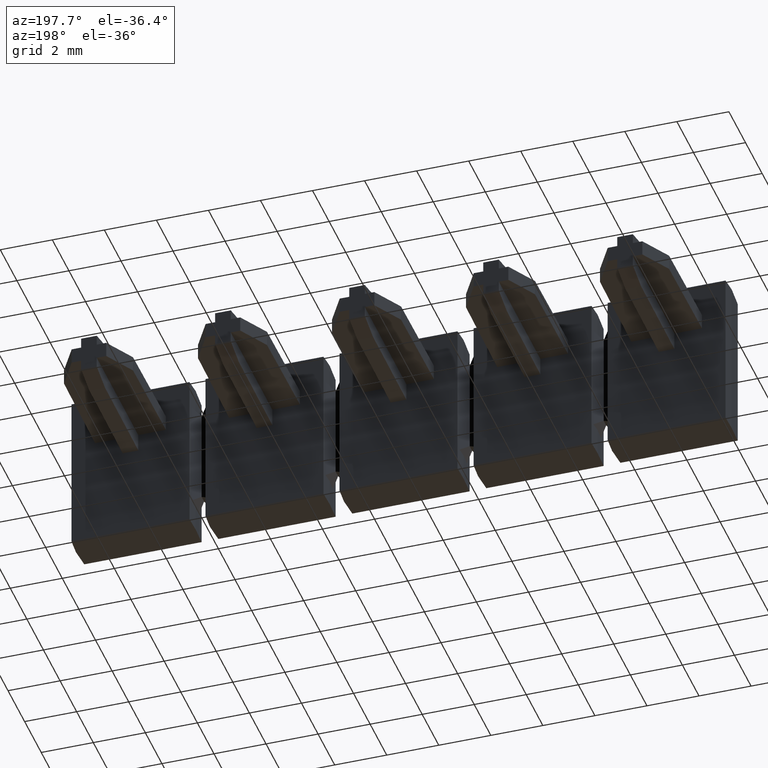
[diagram: clean part render]
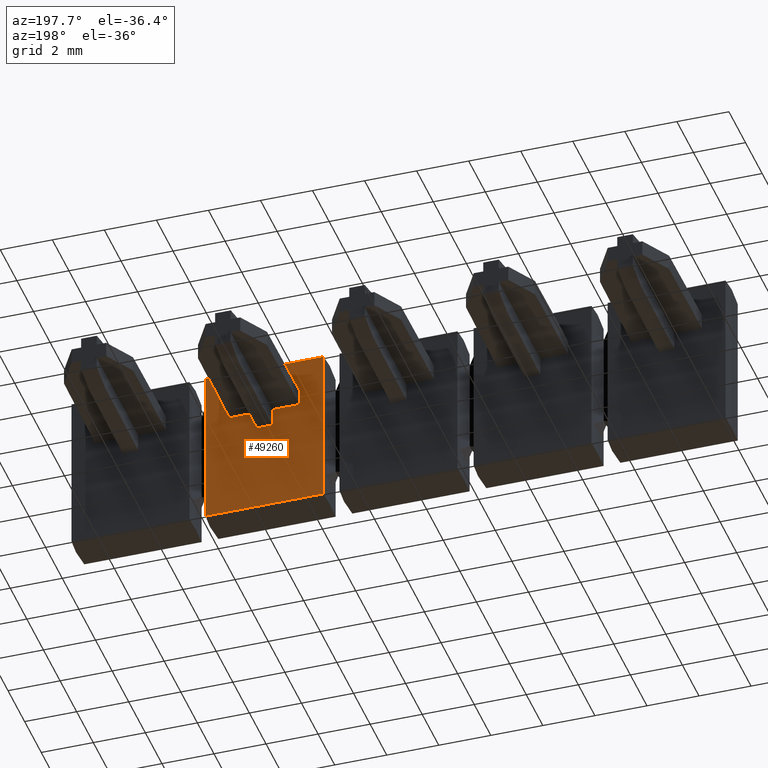
[diagram: same view with one face highlighted and labeled with its STEP entity id]
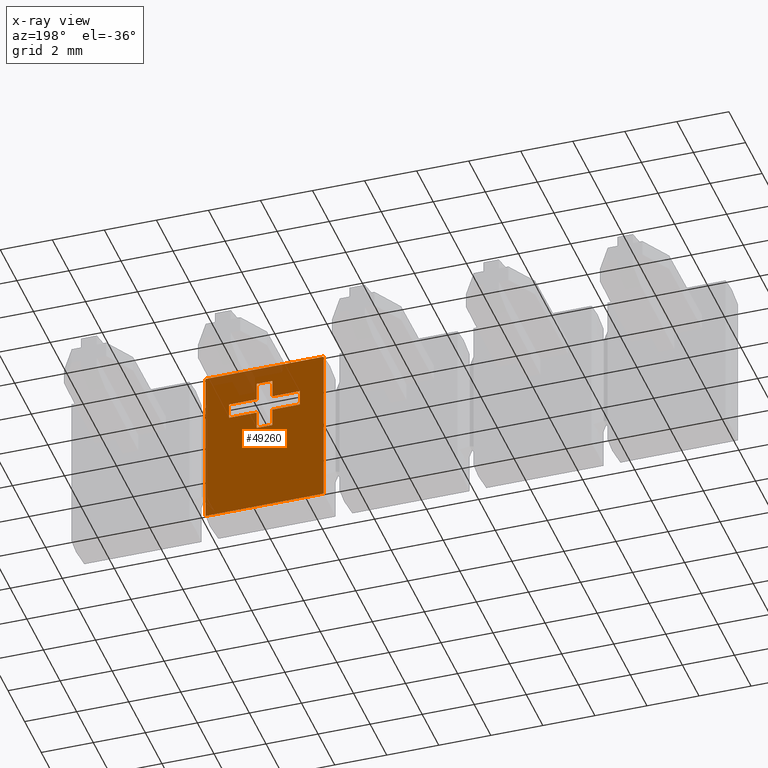
[diagram: x-ray of the same camera — body ghosted, the highlighted face saturated]
A machine part, auxiliary view. The second image highlights one B-rep face of the part: STEP entity #49260.
The next image is the same camera in x-ray: the body ghosted, the highlighted face saturated — about 6% of this face is hidden behind the body in this view.
In plain terms, the highlighted planar face has unit normal (-0, 1, -0).
Its self-contained STEP definition (entity closure, byte-faithful):
#1000=CARTESIAN_POINT('',(18.417735866572,2.26950785553619,
53.6700000000669));
#1010=DIRECTION('',(2.66975915508205E-12,-4.08396006638927E-13,-1.));
#1020=VECTOR('',#1010,1.);
#1030=LINE('',#1000,#1020);
#1040=CARTESIAN_POINT('',(18.4177358666165,2.26950785552938,
37.0050000000215));
#1050=VERTEX_POINT('',#1040);
#1060=CARTESIAN_POINT('',(18.4177358666193,2.26950785552895,
35.9449999999923));
#1070=VERTEX_POINT('',#1060);
#1080=EDGE_CURVE('',#1050,#1070,#1030,.T.);
#9550=CARTESIAN_POINT('',(19.1177358665688,2.26950785552869,
35.3449999999942));
#9560=VERTEX_POINT('',#9550);
#9590=CARTESIAN_POINT('',(25.1869785548975,2.26950785552866,
35.3450000000104));
#9600=DIRECTION('',(-1.,6.29799242864736E-15,-2.6697591550794E-12));
#9610=VECTOR('',#9600,1.);
#9620=LINE('',#9590,#9610);
#9630=CARTESIAN_POINT('',(18.4177358666209,2.2695078555287,
35.3449999999923));
#9640=VERTEX_POINT('',#9630);
#9650=EDGE_CURVE('',#9560,#9640,#9620,.T.);
#13740=CARTESIAN_POINT('',(17.1177358666648,2.26950785552895,
35.9449999999889));
#13750=VERTEX_POINT('',#13740);
#13780=CARTESIAN_POINT('',(25.1869785548959,2.2695078555289,
35.9450000000104));
#13790=DIRECTION('',(1.,-6.29799242864736E-15,2.6697591550794E-12));
#13800=VECTOR('',#13790,1.);
#13810=LINE('',#13780,#13800);
#13820=CARTESIAN_POINT('',(17.8177358666161,2.26950785552895,
35.9449999999907));
#13830=VERTEX_POINT('',#13820);
#13840=EDGE_CURVE('',#13750,#13830,#13810,.T.);
#24130=CARTESIAN_POINT('',(18.417735866572,2.26950785553619,
53.6700000000669));
#24140=DIRECTION('',(2.66975915508205E-12,-4.08396006638927E-13,-1.));
#24150=VECTOR('',#24140,1.);
#24160=LINE('',#24130,#24150);
#24170=CARTESIAN_POINT('',(18.4177358666237,2.26950785552827,
34.2849999999636));
#24180=VERTEX_POINT('',#24170);
#24190=EDGE_CURVE('',#9640,#24180,#24160,.T.);
#25540=CARTESIAN_POINT('',(17.8177358666209,2.2695078555287,
35.3449999999907));
#25550=VERTEX_POINT('',#25540);
#25580=CARTESIAN_POINT('',(25.1869785548975,2.26950785552866,
35.3450000000104));
#25590=DIRECTION('',(-1.,6.29799242864736E-15,-2.6697591550794E-12));
#25600=VECTOR('',#25590,1.);
#25610=LINE('',#25580,#25600);
#25620=CARTESIAN_POINT('',(17.1177358666664,2.2695078555287,
35.3449999999889));
#25630=VERTEX_POINT('',#25620);
#25640=EDGE_CURVE('',#25550,#25630,#25610,.T.);
#28350=CARTESIAN_POINT('',(17.1177358666176,2.26950785553619,
53.6700000000635));
#28360=DIRECTION('',(-2.66475151841568E-12,4.08396006638926E-13,1.));
#28370=VECTOR('',#28360,1.);
#28380=LINE('',#28350,#28370);
#28390=EDGE_CURVE('',#25630,#13750,#28380,.T.);
#33850=CARTESIAN_POINT('',(17.8177358666132,2.26950785552938,
37.0050000000199));
#33860=VERTEX_POINT('',#33850);
#33890=CARTESIAN_POINT('',(25.1869785548931,2.26950785552934,
37.0050000000392));
#33900=DIRECTION('',(1.,-6.29799242866992E-15,2.61451256510272E-12));
#33910=VECTOR('',#33900,1.);
#33920=LINE('',#33890,#33910);
#33930=EDGE_CURVE('',#33860,#1050,#33920,.T.);
#36530=CARTESIAN_POINT('',(25.1869785548959,2.2695078555289,
35.9450000000104));
#36540=DIRECTION('',(1.,-6.29799242864736E-15,2.6697591550794E-12));
#36550=VECTOR('',#36540,1.);
#36560=LINE('',#36530,#36550);
#36570=CARTESIAN_POINT('',(19.1177358665672,2.26950785552894,
35.9449999999942));
#36580=VERTEX_POINT('',#36570);
#36590=EDGE_CURVE('',#1070,#36580,#36560,.T.);
#39370=CARTESIAN_POINT('',(19.1177358665198,2.26950785553618,
53.6700000000688));
#39380=DIRECTION('',(2.67476679174313E-12,-4.08396006638927E-13,-1.));
#39390=VECTOR('',#39380,1.);
#39400=LINE('',#39370,#39390);
#39410=EDGE_CURVE('',#36580,#9560,#39400,.T.);
#43700=CARTESIAN_POINT('',(16.45111071855,2.26950785552976,
37.9116252093693));
#43710=VERTEX_POINT('',#43700);
#43740=CARTESIAN_POINT('',(16.4511107185833,2.2695078555362,
53.6700000000617));
#43750=DIRECTION('',(-2.1134619990612E-12,-4.08396006638896E-13,-1.));
#43760=VECTOR('',#43750,1.);
#43770=LINE('',#43740,#43760);
#43780=CARTESIAN_POINT('',(16.4511107185404,2.26950785552791,
33.3783747906678));
#43790=VERTEX_POINT('',#43780);
#43800=EDGE_CURVE('',#43710,#43790,#43770,.T.);
#46620=CARTESIAN_POINT('',(17.8177358665687,2.26950785553619,
53.6700000000654));
#46630=DIRECTION('',(-2.66975915508205E-12,4.08396006638927E-13,1.));
#46640=VECTOR('',#46630,1.);
#46650=LINE('',#46620,#46640);
#46660=EDGE_CURVE('',#13830,#33860,#46650,.T.);
#48700=CARTESIAN_POINT('',(18.6177358869368,2.26950785553198,
43.3700000205404));
#48710=DIRECTION('',(-6.29799242973768E-15,-1.,4.0839600663891E-13));
#48720=DIRECTION('',(-1.,6.29799243060089E-15,2.11364818889553E-12));
#48730=AXIS2_PLACEMENT_3D('',#48700,#48710,#48720);
#48740=PLANE('',#48730);
#48750=ORIENTED_EDGE('',*,*,#13840,.T.);
#48760=ORIENTED_EDGE('',*,*,#28390,.T.);
#48770=ORIENTED_EDGE('',*,*,#25640,.T.);
#48780=CARTESIAN_POINT('',(17.817735866572,2.26950785553619,
53.6700000000654));
#48790=DIRECTION('',(-2.66975915508205E-12,4.08396006638927E-13,1.));
#48800=VECTOR('',#48790,1.);
#48810=LINE('',#48780,#48800);
#48820=CARTESIAN_POINT('',(17.8177358666238,2.26950785552828,
34.284999999962));
#48830=VERTEX_POINT('',#48820);
#48840=EDGE_CURVE('',#48830,#25550,#48810,.T.);
#48850=ORIENTED_EDGE('',*,*,#48840,.T.);
#48860=CARTESIAN_POINT('',(25.1869785549003,2.26950785552823,
34.284999999982));
#48870=DIRECTION('',(-1.,6.2979924286248E-15,-2.72500574505608E-12));
#48880=VECTOR('',#48870,1.);
#48890=LINE('',#48860,#48880);
#48900=EDGE_CURVE('',#24180,#48830,#48890,.T.);
#48910=ORIENTED_EDGE('',*,*,#48900,.T.);
#48920=ORIENTED_EDGE('',*,*,#24190,.T.);
#48930=ORIENTED_EDGE('',*,*,#9650,.T.);
#48940=ORIENTED_EDGE('',*,*,#39410,.T.);
#48950=ORIENTED_EDGE('',*,*,#36590,.T.);
#48960=ORIENTED_EDGE('',*,*,#1080,.T.);
#48970=ORIENTED_EDGE('',*,*,#33930,.T.);
#48980=ORIENTED_EDGE('',*,*,#46660,.T.);
#48990=EDGE_LOOP('',(#48980,#48970,#48960,#48950,#48940,#48930,#48920,
#48910,#48850,#48770,#48760,#48750));
#49000=FACE_BOUND('',#48990,.T.);
#49010=CARTESIAN_POINT('',(25.1869785548907,2.26950785552971,
37.9116252093508));
#49020=DIRECTION('',(-1.,6.29799243060081E-15,2.11341968318976E-12));
#49030=VECTOR('',#49020,1.);
#49040=LINE('',#49010,#49030);
#49050=CARTESIAN_POINT('',(22.6843610757794,2.26950785552972,
37.9116252093561));
#49060=VERTEX_POINT('',#49050);
#49070=EDGE_CURVE('',#49060,#43710,#49040,.T.);
#49080=ORIENTED_EDGE('',*,*,#49070,.T.);
#49090=CARTESIAN_POINT('',(22.6843610758127,2.26950785553615,
53.6700000000783));
#49100=DIRECTION('',(2.1134619990612E-12,4.08396006638896E-13,1.));
#49110=VECTOR('',#49100,1.);
#49120=LINE('',#49090,#49110);
#49130=CARTESIAN_POINT('',(22.6843610757698,2.26950785552787,
33.3783747906547));
#49140=VERTEX_POINT('',#49130);
#49150=EDGE_CURVE('',#49140,#49060,#49120,.T.);
#49160=ORIENTED_EDGE('',*,*,#49150,.T.);
#49170=CARTESIAN_POINT('',(25.1869785549028,2.26950785552785,
33.3783747906494));
#49180=DIRECTION('',(1.,-6.29799243060085E-15,-2.11350431493264E-12));
#49190=VECTOR('',#49180,1.);
#49200=LINE('',#49170,#49190);
#49210=EDGE_CURVE('',#43790,#49140,#49200,.T.);
#49220=ORIENTED_EDGE('',*,*,#49210,.T.);
#49230=ORIENTED_EDGE('',*,*,#43800,.T.);
#49240=EDGE_LOOP('',(#49230,#49220,#49160,#49080));
#49250=FACE_OUTER_BOUND('',#49240,.T.);
#49260=ADVANCED_FACE('',(#49000,#49250),#48740,.T.);